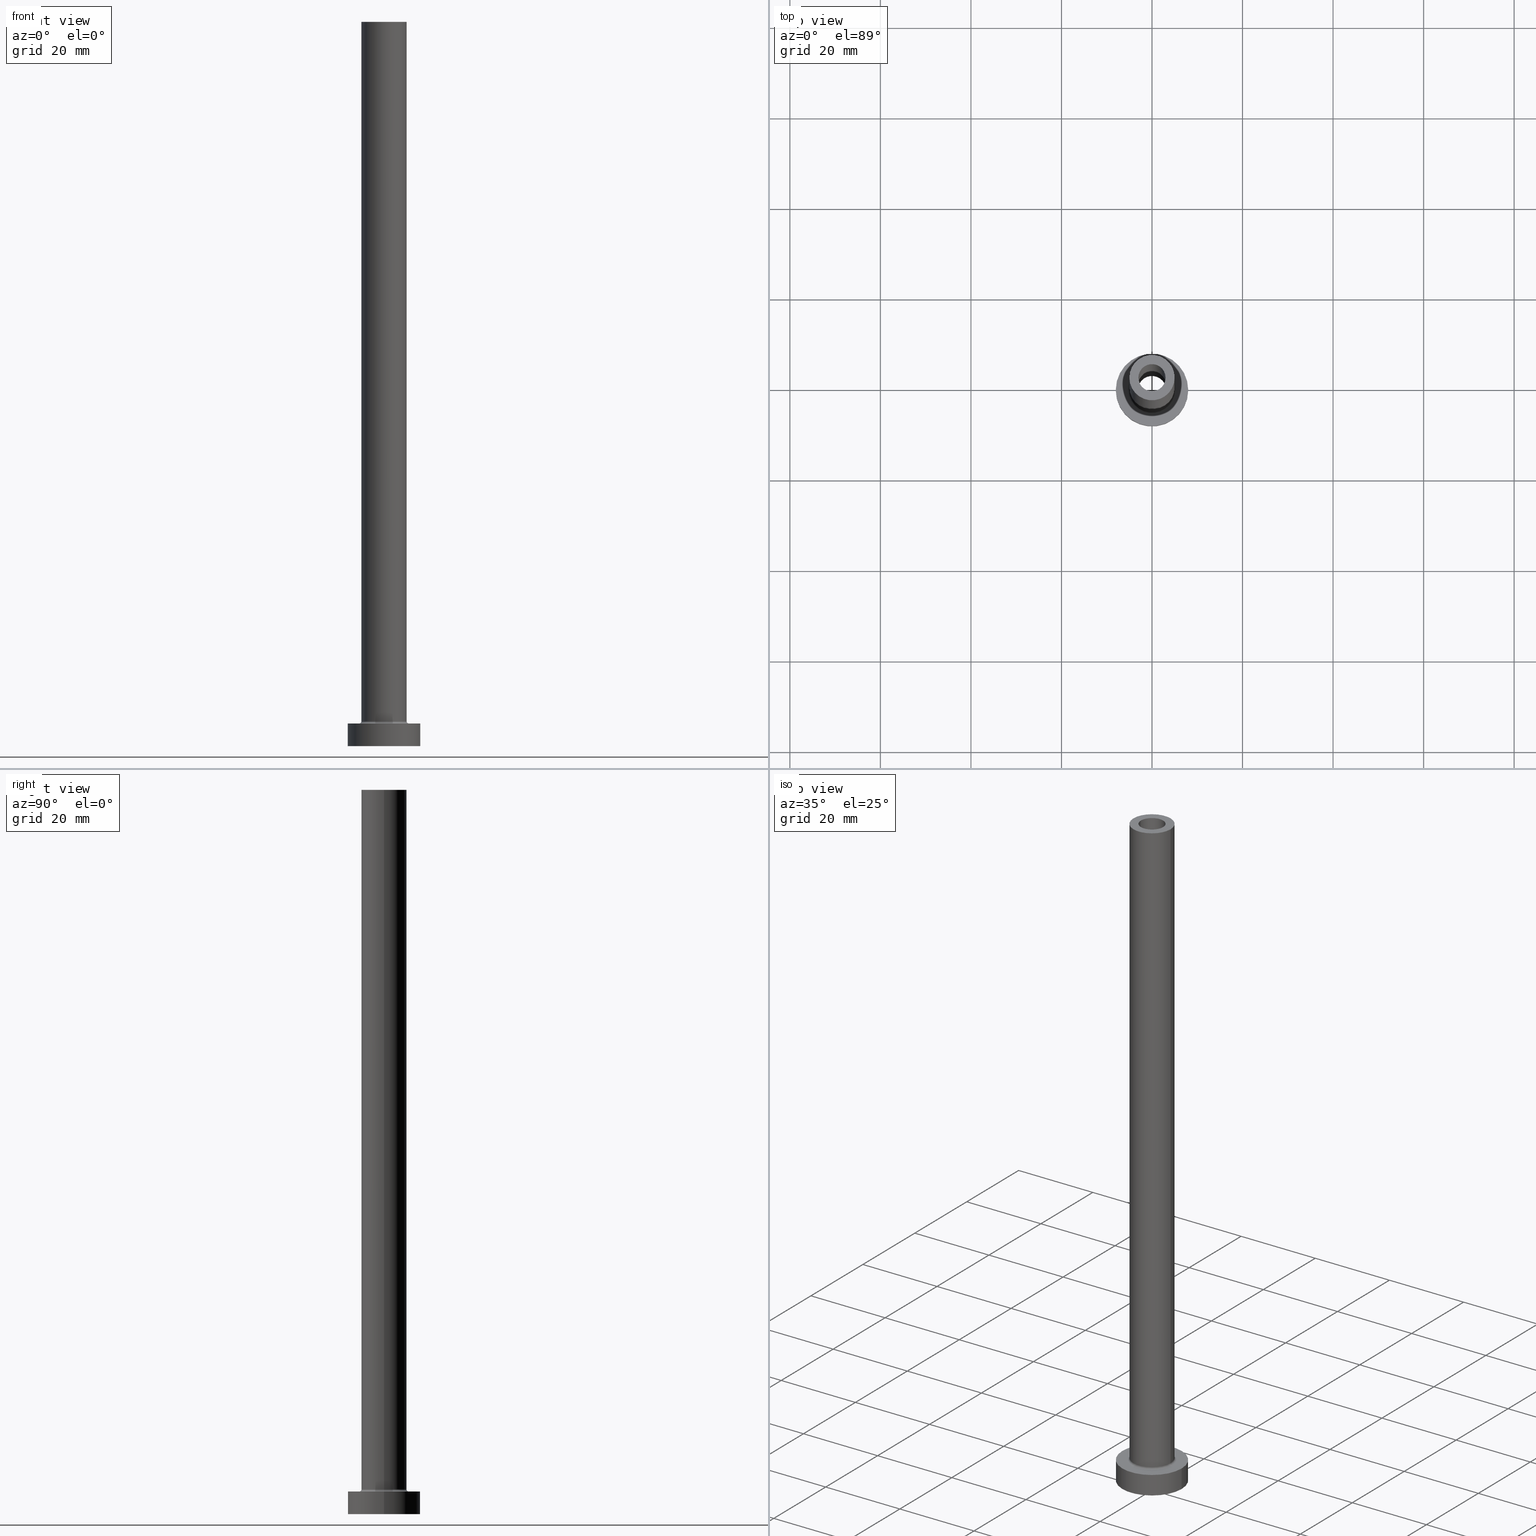
[diagram: canonical four-view strip — front | top / right | iso, engineering-drawing reading convention]
A machine part, canonical four-view strip (front | top / right | iso — engineering-drawing reading convention). The complete STEP part file that produces these views, byte-faithful:
ISO-10303-21;
HEADER;
FILE_DESCRIPTION (( 'STEP AP203' ),
    '1' );
FILE_NAME ('3b01.STEP',
    '2023-02-13T15:32:30',
    ( '' ),
    ( '' ),
    'SwSTEP 2.0',
    'SolidWorks 2019',
    '' );
FILE_SCHEMA (( 'CONFIG_CONTROL_DESIGN' ));
ENDSEC;

DATA;
#1 = PERSON_AND_ORGANIZATION ( #352, #403 ) ;
#2 = CARTESIAN_POINT ( 'NONE',  ( 0.000000000000000000, 0.000000000000000000, 0.000000000000000000 ) ) ;
#3 = ADVANCED_FACE ( 'NONE', ( #236, #304 ), #94, .F. ) ;
#4 = ORIENTED_EDGE ( 'NONE', *, *, #457, .T. ) ;
#5 = CARTESIAN_POINT ( 'NONE',  ( 3.150000000000000355, 3.857637417314162196E-16, 115.0000000000000000 ) ) ;
#6 = AXIS2_PLACEMENT_3D ( 'NONE', #54, #50, #194 ) ;
#7 = VERTEX_POINT ( 'NONE', #25 ) ;
#8 = APPLICATION_CONTEXT ( 'configuration controlled 3d designs of mechanical parts and assemblies' ) ;
#9 = CARTESIAN_POINT ( 'NONE',  ( 0.000000000000000000, 0.000000000000000000, 5.000000000000000000 ) ) ;
#10 = ORIENTED_EDGE ( 'NONE', *, *, #229, .F. ) ;
#11 = AXIS2_PLACEMENT_3D ( 'NONE', #331, #186, #149 ) ;
#12 = ADVANCED_FACE ( 'NONE', ( #311 ), #128, .F. ) ;
#13 = DIRECTION ( 'NONE',  ( 1.000000000000000000, 0.000000000000000000, 0.000000000000000000 ) ) ;
#14 = ORIENTED_EDGE ( 'NONE', *, *, #70, .F. ) ;
#15 = DIRECTION ( 'NONE',  ( 1.000000000000000000, 0.000000000000000000, 0.000000000000000000 ) ) ;
#16 = CARTESIAN_POINT ( 'NONE',  ( 8.000000000000000000, 9.797174393178825657E-16, 0.000000000000000000 ) ) ;
#17 = DIRECTION ( 'NONE',  ( -0.000000000000000000, -0.000000000000000000, -1.000000000000000000 ) ) ;
#18 = APPROVAL ( #381, 'NEUR�EN�' ) ;
#19 = VERTEX_POINT ( 'NONE', #16 ) ;
#20 = AXIS2_PLACEMENT_3D ( 'NONE', #421, #135, #390 ) ;
#21 = ORIENTED_EDGE ( 'NONE', *, *, #299, .T. ) ;
#22 = AXIS2_PLACEMENT_3D ( 'NONE', #275, #189, #374 ) ;
#23 = APPROVAL_PERSON_ORGANIZATION ( #30, #18, #169 ) ;
#24 = CARTESIAN_POINT ( 'NONE',  ( 0.000000000000000000, 0.000000000000000000, 0.000000000000000000 ) ) ;
#25 = CARTESIAN_POINT ( 'NONE',  ( -5.500000000000000000, 6.735557395310442023E-16, 5.000000000000002665 ) ) ;
#26 = DIRECTION ( 'NONE',  ( -1.000000000000000000, 0.000000000000000000, 0.000000000000000000 ) ) ;
#27 = LINE ( 'NONE', #245, #439 ) ;
#28 = ADVANCED_FACE ( 'NONE', ( #306 ), #380, .T. ) ;
#29 = FACE_BOUND ( 'NONE', #307, .T. ) ;
#30 = PERSON_AND_ORGANIZATION ( #352, #403 ) ;
#31 = DATE_AND_TIME ( #214, #202 ) ;
#32 = DIRECTION ( 'NONE',  ( -0.000000000000000000, -0.000000000000000000, -1.000000000000000000 ) ) ;
#33 = PERSON_AND_ORGANIZATION_ROLE ( 'creator' ) ;
#34 = CARTESIAN_POINT ( 'NONE',  ( 3.000000000000000444, 3.673940397442059868E-16, 115.0000000000000000 ) ) ;
#35 = SHAPE_DEFINITION_REPRESENTATION ( #293, #43 ) ;
#36 = APPROVAL_PERSON_ORGANIZATION ( #325, #441, #426 ) ;
#37 = DIRECTION ( 'NONE',  ( 1.000000000000000000, 0.000000000000000000, 0.000000000000000000 ) ) ;
#38 = ADVANCED_FACE ( 'NONE', ( #453 ), #232, .F. ) ;
#39 = MECHANICAL_CONTEXT ( 'NONE', #138, 'mechanical' ) ;
#40 = CYLINDRICAL_SURFACE ( 'NONE', #340, 5.000000000000000000 ) ;
#41 = ORIENTED_EDGE ( 'NONE', *, *, #344, .F. ) ;
#42 = ORIENTED_EDGE ( 'NONE', *, *, #312, .F. ) ;
#43 = ADVANCED_BREP_SHAPE_REPRESENTATION ( '3b01', ( #391, #75 ), #363 ) ;
#44 = AXIS2_PLACEMENT_3D ( 'NONE', #239, #208, #420 ) ;
#45 = VERTEX_POINT ( 'NONE', #34 ) ;
#46 = LOCAL_TIME ( 16, 32, 30.00000000000000000, #288 ) ;
#47 = DIRECTION ( 'NONE',  ( -0.000000000000000000, -0.000000000000000000, -1.000000000000000000 ) ) ;
#48 = EDGE_CURVE ( 'NONE', #188, #125, #289, .T. ) ;
#49 = ORIENTED_EDGE ( 'NONE', *, *, #330, .F. ) ;
#50 = DIRECTION ( 'NONE',  ( 0.000000000000000000, -1.000000000000000000, 0.000000000000000000 ) ) ;
#51 = ORIENTED_EDGE ( 'NONE', *, *, #427, .F. ) ;
#52 = CIRCLE ( 'NONE', #44, 3.150000000000000355 ) ;
#53 = APPROVAL ( #212, 'NEUR�EN�' ) ;
#54 = CARTESIAN_POINT ( 'NONE',  ( 5.500000000000000000, 0.000000000000000000, 5.500000000000005329 ) ) ;
#55 = ORIENTED_EDGE ( 'NONE', *, *, #190, .F. ) ;
#56 = ORIENTED_EDGE ( 'NONE', *, *, #279, .F. ) ;
#57 = AXIS2_PLACEMENT_3D ( 'NONE', #398, #361, #37 ) ;
#58 = PLANE ( 'NONE',  #459 ) ;
#59 = EDGE_LOOP ( 'NONE', ( #260, #268, #231, #55 ) ) ;
#60 = CC_DESIGN_SECURITY_CLASSIFICATION ( #272, ( #83 ) ) ;
#61 = FACE_OUTER_BOUND ( 'NONE', #294, .T. ) ;
#62 = ORIENTED_EDGE ( 'NONE', *, *, #318, .T. ) ;
#63 = EDGE_CURVE ( 'NONE', #415, #125, #269, .T. ) ;
#64 = DIRECTION ( 'NONE',  ( 0.000000000000000000, 0.000000000000000000, -1.000000000000000000 ) ) ;
#65 = DATE_AND_TIME ( #385, #308 ) ;
#66 = CARTESIAN_POINT ( 'NONE',  ( 0.000000000000000000, 0.000000000000000000, 5.000000000000000000 ) ) ;
#67 = CIRCLE ( 'NONE', #106, 0.5000000000000004441 ) ;
#68 = CIRCLE ( 'NONE', #356, 3.150000000000000355 ) ;
#69 = DIRECTION ( 'NONE',  ( 0.000000000000000000, 0.000000000000000000, 1.000000000000000000 ) ) ;
#70 = EDGE_CURVE ( 'NONE', #438, #7, #198, .T. ) ;
#71 = APPROVAL_DATE_TIME ( #65, #18 ) ;
#72 = DIRECTION ( 'NONE',  ( -0.000000000000000000, -0.000000000000000000, -1.000000000000000000 ) ) ;
#73 = AXIS2_PLACEMENT_3D ( 'NONE', #266, #378, #337 ) ;
#74 = VECTOR ( 'NONE', #354, 1000.000000000000000 ) ;
#75 = AXIS2_PLACEMENT_3D ( 'NONE', #358, #108, #178 ) ;
#76 = ORIENTED_EDGE ( 'NONE', *, *, #190, .T. ) ;
#77 = EDGE_LOOP ( 'NONE', ( #369, #123 ) ) ;
#78 = DIRECTION ( 'NONE',  ( -0.000000000000000000, -0.000000000000000000, -1.000000000000000000 ) ) ;
#79 = VERTEX_POINT ( 'NONE', #451 ) ;
#80 = VECTOR ( 'NONE', #458, 1000.000000000000000 ) ;
#81 = FACE_OUTER_BOUND ( 'NONE', #114, .T. ) ;
#82 = EDGE_CURVE ( 'NONE', #122, #79, #27, .T. ) ;
#83 = PRODUCT_DEFINITION_FORMATION_WITH_SPECIFIED_SOURCE ( 'LIBOVOLN�', '', #282, .NOT_KNOWN. ) ;
#84 = ORIENTED_EDGE ( 'NONE', *, *, #48, .T. ) ;
#85 = ORIENTED_EDGE ( 'NONE', *, *, #312, .T. ) ;
#86 = FACE_OUTER_BOUND ( 'NONE', #405, .T. ) ;
#87 = ORIENTED_EDGE ( 'NONE', *, *, #48, .F. ) ;
#88 = ADVANCED_FACE ( 'NONE', ( #297, #290 ), #153, .F. ) ;
#89 = CYLINDRICAL_SURFACE ( 'NONE', #210, 3.000000000000000444 ) ;
#90 = ORIENTED_EDGE ( 'NONE', *, *, #344, .T. ) ;
#91 = AXIS2_PLACEMENT_3D ( 'NONE', #401, #255, #221 ) ;
#92 = EDGE_LOOP ( 'NONE', ( #163, #292 ) ) ;
#93 = DIRECTION ( 'NONE',  ( 0.000000000000000000, 0.000000000000000000, -1.000000000000000000 ) ) ;
#94 = PLANE ( 'NONE',  #183 ) ;
#95 = CARTESIAN_POINT ( 'NONE',  ( 0.000000000000000000, 0.000000000000000000, 0.000000000000000000 ) ) ;
#96 = EDGE_CURVE ( 'NONE', #187, #45, #247, .T. ) ;
#97 = ORIENTED_EDGE ( 'NONE', *, *, #82, .F. ) ;
#98 = CC_DESIGN_APPROVAL ( #441, ( #435 ) ) ;
#99 = DIRECTION ( 'NONE',  ( 0.000000000000000000, 0.000000000000000000, 1.000000000000000000 ) ) ;
#100 = CARTESIAN_POINT ( 'NONE',  ( 0.000000000000000000, 0.000000000000000000, 5.500000000000005329 ) ) ;
#101 = PERSON_AND_ORGANIZATION ( #352, #403 ) ;
#102 = EDGE_CURVE ( 'NONE', #79, #193, #333, .T. ) ;
#103 = CYLINDRICAL_SURFACE ( 'NONE', #315, 8.000000000000000000 ) ;
#104 = CARTESIAN_POINT ( 'NONE',  ( -5.000000000000000000, 0.000000000000000000, 160.0000000000000000 ) ) ;
#105 = PERSON_AND_ORGANIZATION ( #352, #403 ) ;
#106 = AXIS2_PLACEMENT_3D ( 'NONE', #305, #368, #192 ) ;
#107 = CARTESIAN_POINT ( 'NONE',  ( 5.000000000000000000, 6.123233995736766282E-16, 5.500000000000005329 ) ) ;
#108 = DIRECTION ( 'NONE',  ( 0.000000000000000000, 0.000000000000000000, 1.000000000000000000 ) ) ;
#109 = DIRECTION ( 'NONE',  ( 0.000000000000000000, 0.000000000000000000, 1.000000000000000000 ) ) ;
#110 = APPLICATION_PROTOCOL_DEFINITION ( 'international standard', 'config_control_design', 1994, #138 ) ;
#111 = DIRECTION ( 'NONE',  ( 0.000000000000000000, 0.000000000000000000, 1.000000000000000000 ) ) ;
#112 = TOROIDAL_SURFACE ( 'NONE', #370, 5.500000000000000000, 0.5000000000000000000 ) ;
#113 = DIRECTION ( 'NONE',  ( -1.000000000000000000, 0.000000000000000000, 0.000000000000000000 ) ) ;
#114 = EDGE_LOOP ( 'NONE', ( #119, #219, #440, #87 ) ) ;
#115 = ADVANCED_FACE ( 'NONE', ( #81 ), #151, .T. ) ;
#116 = CARTESIAN_POINT ( 'NONE',  ( -5.000000000000000000, 0.000000000000000000, 5.500000000000005329 ) ) ;
#117 = ORIENTED_EDGE ( 'NONE', *, *, #393, .T. ) ;
#118 = AXIS2_PLACEMENT_3D ( 'NONE', #95, #99, #348 ) ;
#119 = ORIENTED_EDGE ( 'NONE', *, *, #393, .F. ) ;
#120 = EDGE_LOOP ( 'NONE', ( #301, #21, #14, #238 ) ) ;
#121 = DIRECTION ( 'NONE',  ( -1.000000000000000000, 0.000000000000000000, 0.000000000000000000 ) ) ;
#122 = VERTEX_POINT ( 'NONE', #5 ) ;
#123 = ORIENTED_EDGE ( 'NONE', *, *, #362, .T. ) ;
#124 = DIRECTION ( 'NONE',  ( 0.000000000000000000, 0.000000000000000000, -1.000000000000000000 ) ) ;
#125 = VERTEX_POINT ( 'NONE', #116 ) ;
#126 = EDGE_CURVE ( 'NONE', #309, #195, #387, .T. ) ;
#127 = CARTESIAN_POINT ( 'NONE',  ( 0.000000000000000000, 0.000000000000000000, 160.0000000000000000 ) ) ;
#128 = CYLINDRICAL_SURFACE ( 'NONE', #73, 3.150000000000000355 ) ;
#129 = AXIS2_PLACEMENT_3D ( 'NONE', #2, #78, #216 ) ;
#130 = LINE ( 'NONE', #277, #80 ) ;
#131 = CARTESIAN_POINT ( 'NONE',  ( 0.000000000000000000, 0.000000000000000000, 5.000000000000000000 ) ) ;
#132 = CIRCLE ( 'NONE', #91, 3.000000000000000444 ) ;
#133 = APPROVAL_DATE_TIME ( #205, #441 ) ;
#134 = CARTESIAN_POINT ( 'NONE',  ( 5.000000000000000000, 6.123233995736766282E-16, 160.0000000000000000 ) ) ;
#135 = DIRECTION ( 'NONE',  ( 0.000000000000000000, 0.000000000000000000, 1.000000000000000000 ) ) ;
#136 = COORDINATED_UNIVERSAL_TIME_OFFSET ( 1, 0, .AHEAD. ) ;
#137 = CARTESIAN_POINT ( 'NONE',  ( 0.000000000000000000, 0.000000000000000000, 5.000000000000000000 ) ) ;
#138 = APPLICATION_CONTEXT ( 'configuration controlled 3d designs of mechanical parts and assemblies' ) ;
#139 = COORDINATED_UNIVERSAL_TIME_OFFSET ( 1, 0, .AHEAD. ) ;
#140 = CYLINDRICAL_SURFACE ( 'NONE', #302, 3.150000000000000355 ) ;
#141 = AXIS2_PLACEMENT_3D ( 'NONE', #131, #392, #346 ) ;
#142 = AXIS2_PLACEMENT_3D ( 'NONE', #137, #69, #211 ) ;
#143 = CC_DESIGN_PERSON_AND_ORGANIZATION_ASSIGNMENT ( #1, #180, ( #282 ) ) ;
#144 = CARTESIAN_POINT ( 'NONE',  ( 0.000000000000000000, 0.000000000000000000, 160.0000000000000000 ) ) ;
#145 = ORIENTED_EDGE ( 'NONE', *, *, #206, .T. ) ;
#146 = DIRECTION ( 'NONE',  ( -0.000000000000000000, -0.000000000000000000, -1.000000000000000000 ) ) ;
#147 = VECTOR ( 'NONE', #460, 1000.000000000000000 ) ;
#148 = ORIENTED_EDGE ( 'NONE', *, *, #96, .F. ) ;
#149 = DIRECTION ( 'NONE',  ( 1.000000000000000000, 0.000000000000000000, -0.000000000000000000 ) ) ;
#150 = EDGE_CURVE ( 'NONE', #122, #359, #172, .T. ) ;
#151 = CYLINDRICAL_SURFACE ( 'NONE', #355, 5.000000000000000000 ) ;
#152 = ORIENTED_EDGE ( 'NONE', *, *, #229, .T. ) ;
#153 = PLANE ( 'NONE',  #11 ) ;
#154 = ORIENTED_EDGE ( 'NONE', *, *, #177, .F. ) ;
#155 = CIRCLE ( 'NONE', #118, 8.000000000000000000 ) ;
#156 = CARTESIAN_POINT ( 'NONE',  ( 0.000000000000000000, 0.000000000000000000, 160.0000000000000000 ) ) ;
#157 = EDGE_LOOP ( 'NONE', ( #154, #56, #84, #145 ) ) ;
#158 = DIRECTION ( 'NONE',  ( 0.000000000000000000, 0.000000000000000000, 1.000000000000000000 ) ) ;
#159 = ORIENTED_EDGE ( 'NONE', *, *, #171, .T. ) ;
#160 = FACE_OUTER_BOUND ( 'NONE', #444, .T. ) ;
#161 = VERTEX_POINT ( 'NONE', #300 ) ;
#162 = CARTESIAN_POINT ( 'NONE',  ( 0.000000000000000000, 0.000000000000000000, 5.500000000000005329 ) ) ;
#163 = ORIENTED_EDGE ( 'NONE', *, *, #457, .F. ) ;
#164 = CIRCLE ( 'NONE', #271, 8.000000000000000000 ) ;
#165 = DIRECTION ( 'NONE',  ( 0.000000000000000000, 0.000000000000000000, 1.000000000000000000 ) ) ;
#166 = EDGE_LOOP ( 'NONE', ( #49, #376, #85, #343 ) ) ;
#167 = CARTESIAN_POINT ( 'NONE',  ( 0.000000000000000000, 0.000000000000000000, 160.0000000000000000 ) ) ;
#168 = DIRECTION ( 'NONE',  ( 0.000000000000000000, 0.000000000000000000, -1.000000000000000000 ) ) ;
#169 = APPROVAL_ROLE ( '' ) ;
#170 = FACE_OUTER_BOUND ( 'NONE', #59, .T. ) ;
#171 = EDGE_CURVE ( 'NONE', #240, #327, #132, .T. ) ;
#172 = CIRCLE ( 'NONE', #409, 3.150000000000000355 ) ;
#173 = CARTESIAN_POINT ( 'NONE',  ( 0.000000000000000000, 0.000000000000000000, 5.500000000000005329 ) ) ;
#174 = APPROVAL_DATE_TIME ( #31, #53 ) ;
#175 =( LENGTH_UNIT ( ) NAMED_UNIT ( * ) SI_UNIT ( .MILLI., .METRE. ) );
#176 = PERSON_AND_ORGANIZATION_ROLE ( 'classification_officer' ) ;
#177 = EDGE_CURVE ( 'NONE', #407, #415, #179, .T. ) ;
#178 = DIRECTION ( 'NONE',  ( 1.000000000000000000, 0.000000000000000000, 0.000000000000000000 ) ) ;
#179 = LINE ( 'NONE', #364, #74 ) ;
#180 = PERSON_AND_ORGANIZATION_ROLE ( 'design_owner' ) ;
#181 = CARTESIAN_POINT ( 'NONE',  ( -3.000000000000000444, 0.000000000000000000, 115.0000000000000000 ) ) ;
#182 = CC_DESIGN_DATE_AND_TIME_ASSIGNMENT ( #316, #456, ( #272 ) ) ;
#183 = AXIS2_PLACEMENT_3D ( 'NONE', #197, #436, #339 ) ;
#184 = ORIENTED_EDGE ( 'NONE', *, *, #82, .T. ) ;
#185 = CIRCLE ( 'NONE', #396, 5.500000000000000000 ) ;
#186 = DIRECTION ( 'NONE',  ( 0.000000000000000000, 0.000000000000000000, 1.000000000000000000 ) ) ;
#187 = VERTEX_POINT ( 'NONE', #181 ) ;
#188 = VERTEX_POINT ( 'NONE', #395 ) ;
#189 = DIRECTION ( 'NONE',  ( 0.000000000000000000, 0.000000000000000000, 1.000000000000000000 ) ) ;
#190 = EDGE_CURVE ( 'NONE', #7, #438, #185, .T. ) ;
#191 = VECTOR ( 'NONE', #93, 1000.000000000000000 ) ;
#192 = DIRECTION ( 'NONE',  ( -1.000000000000000000, 1.224646799147351482E-16, 0.000000000000000000 ) ) ;
#193 = VERTEX_POINT ( 'NONE', #324 ) ;
#194 = DIRECTION ( 'NONE',  ( 0.000000000000000000, 0.000000000000000000, -1.000000000000000000 ) ) ;
#195 = VERTEX_POINT ( 'NONE', #461 ) ;
#196 = ADVANCED_FACE ( 'NONE', ( #218 ), #40, .T. ) ;
#197 = CARTESIAN_POINT ( 'NONE',  ( 0.000000000000000000, 0.000000000000000000, 115.0000000000000000 ) ) ;
#198 = CIRCLE ( 'NONE', #141, 5.500000000000000000 ) ;
#199 = CARTESIAN_POINT ( 'NONE',  ( 0.000000000000000000, 0.000000000000000000, 160.0000000000000000 ) ) ;
#200 = CIRCLE ( 'NONE', #22, 3.000000000000000444 ) ;
#201 = ORIENTED_EDGE ( 'NONE', *, *, #220, .F. ) ;
#202 = LOCAL_TIME ( 16, 32, 30.00000000000000000, #241 ) ;
#203 = DESIGN_CONTEXT ( 'detailed design', #8, 'design' ) ;
#204 = FACE_OUTER_BOUND ( 'NONE', #166, .T. ) ;
#205 = DATE_AND_TIME ( #419, #46 ) ;
#206 = EDGE_CURVE ( 'NONE', #125, #415, #233, .T. ) ;
#207 = CARTESIAN_POINT ( 'NONE',  ( 0.000000000000000000, 0.000000000000000000, 5.000000000000000000 ) ) ;
#208 = DIRECTION ( 'NONE',  ( 0.000000000000000000, 0.000000000000000000, 1.000000000000000000 ) ) ;
#209 = DIRECTION ( 'NONE',  ( -0.000000000000000000, -0.000000000000000000, -1.000000000000000000 ) ) ;
#210 = AXIS2_PLACEMENT_3D ( 'NONE', #127, #406, #227 ) ;
#211 = DIRECTION ( 'NONE',  ( 1.000000000000000000, 0.000000000000000000, -0.000000000000000000 ) ) ;
#212 = APPROVAL_STATUS ( 'not_yet_approved' ) ;
#213 = ADVANCED_FACE ( 'NONE', ( #160 ), #230, .F. ) ;
#214 = CALENDAR_DATE ( 2023, 13, 2 ) ;
#215 =( NAMED_UNIT ( * ) PLANE_ANGLE_UNIT ( ) SI_UNIT ( $, .RADIAN. ) );
#216 = DIRECTION ( 'NONE',  ( 1.000000000000000000, 0.000000000000000000, 0.000000000000000000 ) ) ;
#217 = VECTOR ( 'NONE', #416, 1000.000000000000000 ) ;
#218 = FACE_OUTER_BOUND ( 'NONE', #157, .T. ) ;
#219 = ORIENTED_EDGE ( 'NONE', *, *, #177, .T. ) ;
#220 = EDGE_CURVE ( 'NONE', #327, #240, #200, .T. ) ;
#221 = DIRECTION ( 'NONE',  ( 1.000000000000000000, 0.000000000000000000, 0.000000000000000000 ) ) ;
#222 = EDGE_LOOP ( 'NONE', ( #256, #62 ) ) ;
#223 = CIRCLE ( 'NONE', #287, 5.000000000000000000 ) ;
#224 = CIRCLE ( 'NONE', #433, 3.000000000000000444 ) ;
#225 = DIRECTION ( 'NONE',  ( 1.000000000000000000, 0.000000000000000000, 0.000000000000000000 ) ) ;
#226 = EDGE_LOOP ( 'NONE', ( #372, #262 ) ) ;
#227 = DIRECTION ( 'NONE',  ( -1.000000000000000000, 0.000000000000000000, 0.000000000000000000 ) ) ;
#228 = ORIENTED_EDGE ( 'NONE', *, *, #417, .T. ) ;
#229 = EDGE_CURVE ( 'NONE', #359, #193, #412, .T. ) ;
#230 = CYLINDRICAL_SURFACE ( 'NONE', #429, 3.000000000000000444 ) ;
#231 = ORIENTED_EDGE ( 'NONE', *, *, #270, .T. ) ;
#232 = TOROIDAL_SURFACE ( 'NONE', #20, 5.500000000000000000, 0.5000000000000000000 ) ;
#233 = CIRCLE ( 'NONE', #350, 5.000000000000000000 ) ;
#234 = CC_DESIGN_APPROVAL ( #53, ( #83 ) ) ;
#235 = ORIENTED_EDGE ( 'NONE', *, *, #150, .T. ) ;
#236 = FACE_BOUND ( 'NONE', #77, .T. ) ;
#237 = FACE_BOUND ( 'NONE', #360, .T. ) ;
#238 = ORIENTED_EDGE ( 'NONE', *, *, #270, .F. ) ;
#239 = CARTESIAN_POINT ( 'NONE',  ( 0.000000000000000000, 0.000000000000000000, 115.0000000000000000 ) ) ;
#240 = VERTEX_POINT ( 'NONE', #303 ) ;
#241 = COORDINATED_UNIVERSAL_TIME_OFFSET ( 1, 0, .AHEAD. ) ;
#242 = ADVANCED_FACE ( 'NONE', ( #237, #434 ), #58, .T. ) ;
#243 = DATE_AND_TIME ( #319, #341 ) ;
#244 = FACE_OUTER_BOUND ( 'NONE', #222, .T. ) ;
#245 = CARTESIAN_POINT ( 'NONE',  ( 3.150000000000000355, 3.857637417314162196E-16, 123.9095454429505025 ) ) ;
#246 = PERSON_AND_ORGANIZATION ( #352, #403 ) ;
#247 = CIRCLE ( 'NONE', #57, 3.000000000000000444 ) ;
#248 = CARTESIAN_POINT ( 'NONE',  ( 0.000000000000000000, 0.000000000000000000, 115.0000000000000000 ) ) ;
#249 = AXIS2_PLACEMENT_3D ( 'NONE', #207, #283, #414 ) ;
#250 = LOCAL_TIME ( 16, 32, 30.00000000000000000, #388 ) ;
#251 = APPROVAL_ROLE ( '' ) ;
#252 = CARTESIAN_POINT ( 'NONE',  ( 0.000000000000000000, 0.000000000000000000, 0.000000000000000000 ) ) ;
#253 =( NAMED_UNIT ( * ) SI_UNIT ( $, .STERADIAN. ) SOLID_ANGLE_UNIT ( ) );
#254 = DIRECTION ( 'NONE',  ( 1.000000000000000000, 0.000000000000000000, 0.000000000000000000 ) ) ;
#255 = DIRECTION ( 'NONE',  ( 0.000000000000000000, 0.000000000000000000, 1.000000000000000000 ) ) ;
#256 = ORIENTED_EDGE ( 'NONE', *, *, #126, .T. ) ;
#257 = EDGE_CURVE ( 'NONE', #161, #19, #164, .T. ) ;
#258 = VECTOR ( 'NONE', #17, 1000.000000000000000 ) ;
#259 = CARTESIAN_POINT ( 'NONE',  ( 0.000000000000000000, 0.000000000000000000, 5.000000000000000000 ) ) ;
#260 = ORIENTED_EDGE ( 'NONE', *, *, #299, .F. ) ;
#261 = AXIS2_PLACEMENT_3D ( 'NONE', #66, #209, #322 ) ;
#262 = ORIENTED_EDGE ( 'NONE', *, *, #335, .F. ) ;
#263 = ADVANCED_FACE ( 'NONE', ( #86 ), #89, .F. ) ;
#264 = EDGE_LOOP ( 'NONE', ( #41, #365 ) ) ;
#265 = DIRECTION ( 'NONE',  ( 0.000000000000000000, 0.000000000000000000, 1.000000000000000000 ) ) ;
#266 = CARTESIAN_POINT ( 'NONE',  ( 0.000000000000000000, 0.000000000000000000, 123.9095454429505025 ) ) ;
#267 = LINE ( 'NONE', #338, #258 ) ;
#268 = ORIENTED_EDGE ( 'NONE', *, *, #63, .F. ) ;
#269 = CIRCLE ( 'NONE', #384, 5.000000000000000000 ) ;
#270 = EDGE_CURVE ( 'NONE', #415, #438, #424, .T. ) ;
#271 = AXIS2_PLACEMENT_3D ( 'NONE', #24, #165, #336 ) ;
#272 = SECURITY_CLASSIFICATION ( '', '', #452 ) ;
#273 = ORIENTED_EDGE ( 'NONE', *, *, #70, .T. ) ;
#274 = ORIENTED_EDGE ( 'NONE', *, *, #171, .F. ) ;
#275 = CARTESIAN_POINT ( 'NONE',  ( 0.000000000000000000, 0.000000000000000000, 160.0000000000000000 ) ) ;
#276 = ORIENTED_EDGE ( 'NONE', *, *, #427, .T. ) ;
#277 = CARTESIAN_POINT ( 'NONE',  ( 3.000000000000000444, 3.673940397442059868E-16, 160.0000000000000000 ) ) ;
#278 = AXIS2_PLACEMENT_3D ( 'NONE', #9, #111, #296 ) ;
#279 = EDGE_CURVE ( 'NONE', #188, #407, #323, .T. ) ;
#280 = LINE ( 'NONE', #313, #328 ) ;
#281 = CALENDAR_DATE ( 2023, 13, 2 ) ;
#282 = PRODUCT ( '3b01', '3b01', '', ( #39 ) ) ;
#283 = DIRECTION ( 'NONE',  ( 0.000000000000000000, 0.000000000000000000, 1.000000000000000000 ) ) ;
#284 = PERSON_AND_ORGANIZATION ( #352, #403 ) ;
#285 = CC_DESIGN_PERSON_AND_ORGANIZATION_ASSIGNMENT ( #284, #176, ( #272 ) ) ;
#286 = DIRECTION ( 'NONE',  ( 1.000000000000000000, 0.000000000000000000, 0.000000000000000000 ) ) ;
#287 = AXIS2_PLACEMENT_3D ( 'NONE', #167, #455, #286 ) ;
#288 = COORDINATED_UNIVERSAL_TIME_OFFSET ( 1, 0, .AHEAD. ) ;
#289 = LINE ( 'NONE', #104, #147 ) ;
#290 = FACE_OUTER_BOUND ( 'NONE', #226, .T. ) ;
#291 = CC_DESIGN_PERSON_AND_ORGANIZATION_ASSIGNMENT ( #246, #33, ( #83 ) ) ;
#292 = ORIENTED_EDGE ( 'NONE', *, *, #102, .F. ) ;
#293 = PRODUCT_DEFINITION_SHAPE ( 'NONE', 'NONE',  #435 ) ;
#294 = EDGE_LOOP ( 'NONE', ( #97, #235, #152, #4 ) ) ;
#295 = CC_DESIGN_APPROVAL ( #18, ( #272 ) ) ;
#296 = DIRECTION ( 'NONE',  ( 1.000000000000000000, 0.000000000000000000, 0.000000000000000000 ) ) ;
#297 = FACE_BOUND ( 'NONE', #92, .T. ) ;
#298 = UNCERTAINTY_MEASURE_WITH_UNIT (LENGTH_MEASURE( 1.000000000000000082E-05 ), #175, 'distance_accuracy_value', 'NONE');
#299 = EDGE_CURVE ( 'NONE', #125, #7, #67, .T. ) ;
#300 = CARTESIAN_POINT ( 'NONE',  ( -8.000000000000000000, 0.000000000000000000, 0.000000000000000000 ) ) ;
#301 = ORIENTED_EDGE ( 'NONE', *, *, #206, .F. ) ;
#302 = AXIS2_PLACEMENT_3D ( 'NONE', #450, #64, #26 ) ;
#303 = CARTESIAN_POINT ( 'NONE',  ( 3.000000000000000444, 3.673940397442059868E-16, 160.0000000000000000 ) ) ;
#304 = FACE_OUTER_BOUND ( 'NONE', #264, .T. ) ;
#305 = CARTESIAN_POINT ( 'NONE',  ( -5.500000000000000000, 6.735557395310442023E-16, 5.500000000000005329 ) ) ;
#306 = FACE_OUTER_BOUND ( 'NONE', #399, .T. ) ;
#307 = EDGE_LOOP ( 'NONE', ( #273, #76 ) ) ;
#308 = LOCAL_TIME ( 16, 32, 30.00000000000000000, #139 ) ;
#309 = VERTEX_POINT ( 'NONE', #437 ) ;
#310 = CARTESIAN_POINT ( 'NONE',  ( -3.150000000000000355, 0.000000000000000000, 123.9095454429505025 ) ) ;
#311 = FACE_OUTER_BOUND ( 'NONE', #408, .T. ) ;
#312 = EDGE_CURVE ( 'NONE', #309, #161, #267, .T. ) ;
#313 = CARTESIAN_POINT ( 'NONE',  ( 8.000000000000000000, 9.797174393178825657E-16, 5.000000000000000000 ) ) ;
#314 = CARTESIAN_POINT ( 'NONE',  ( -3.000000000000000444, 0.000000000000000000, 160.0000000000000000 ) ) ;
#315 = AXIS2_PLACEMENT_3D ( 'NONE', #320, #418, #379 ) ;
#316 = DATE_AND_TIME ( #281, #250 ) ;
#317 = DIRECTION ( 'NONE',  ( 1.000000000000000000, 0.000000000000000000, 0.000000000000000000 ) ) ;
#318 = EDGE_CURVE ( 'NONE', #195, #309, #442, .T. ) ;
#319 = CALENDAR_DATE ( 2023, 13, 2 ) ;
#320 = CARTESIAN_POINT ( 'NONE',  ( 0.000000000000000000, 0.000000000000000000, 5.000000000000000000 ) ) ;
#321 = DATE_TIME_ROLE ( 'creation_date' ) ;
#322 = DIRECTION ( 'NONE',  ( -1.000000000000000000, 0.000000000000000000, 0.000000000000000000 ) ) ;
#323 = CIRCLE ( 'NONE', #448, 5.000000000000000000 ) ;
#324 = CARTESIAN_POINT ( 'NONE',  ( -3.150000000000000355, 0.000000000000000000, 0.000000000000000000 ) ) ;
#325 = PERSON_AND_ORGANIZATION ( #352, #403 ) ;
#326 = CARTESIAN_POINT ( 'NONE',  ( 0.000000000000000000, 0.000000000000000000, 160.0000000000000000 ) ) ;
#327 = VERTEX_POINT ( 'NONE', #347 ) ;
#328 = VECTOR ( 'NONE', #32, 1000.000000000000000 ) ;
#329 = ORIENTED_EDGE ( 'NONE', *, *, #330, .T. ) ;
#330 = EDGE_CURVE ( 'NONE', #195, #19, #280, .T. ) ;
#331 = CARTESIAN_POINT ( 'NONE',  ( 0.000000000000000000, 0.000000000000000000, 0.000000000000000000 ) ) ;
#332 = ORIENTED_EDGE ( 'NONE', *, *, #220, .T. ) ;
#333 = CIRCLE ( 'NONE', #129, 3.150000000000000355 ) ;
#334 = EDGE_LOOP ( 'NONE', ( #445, #117 ) ) ;
#335 = EDGE_CURVE ( 'NONE', #19, #161, #155, .T. ) ;
#336 = DIRECTION ( 'NONE',  ( 1.000000000000000000, 0.000000000000000000, 0.000000000000000000 ) ) ;
#337 = DIRECTION ( 'NONE',  ( -1.000000000000000000, 0.000000000000000000, 0.000000000000000000 ) ) ;
#338 = CARTESIAN_POINT ( 'NONE',  ( -8.000000000000000000, 0.000000000000000000, 5.000000000000000000 ) ) ;
#339 = DIRECTION ( 'NONE',  ( 1.000000000000000000, 0.000000000000000000, -0.000000000000000000 ) ) ;
#340 = AXIS2_PLACEMENT_3D ( 'NONE', #326, #146, #371 ) ;
#341 = LOCAL_TIME ( 16, 32, 30.00000000000000000, #136 ) ;
#342 = DIRECTION ( 'NONE',  ( 1.000000000000000000, 0.000000000000000000, -0.000000000000000000 ) ) ;
#343 = ORIENTED_EDGE ( 'NONE', *, *, #257, .T. ) ;
#344 = EDGE_CURVE ( 'NONE', #359, #122, #52, .T. ) ;
#345 = CARTESIAN_POINT ( 'NONE',  ( -3.150000000000000355, 0.000000000000000000, 115.0000000000000000 ) ) ;
#346 = DIRECTION ( 'NONE',  ( 1.000000000000000000, 0.000000000000000000, 0.000000000000000000 ) ) ;
#347 = CARTESIAN_POINT ( 'NONE',  ( -3.000000000000000444, 0.000000000000000000, 160.0000000000000000 ) ) ;
#348 = DIRECTION ( 'NONE',  ( 1.000000000000000000, 0.000000000000000000, 0.000000000000000000 ) ) ;
#349 = CC_DESIGN_DATE_AND_TIME_ASSIGNMENT ( #243, #321, ( #435 ) ) ;
#350 = AXIS2_PLACEMENT_3D ( 'NONE', #162, #443, #13 ) ;
#351 = LINE ( 'NONE', #314, #217 ) ;
#352 = PERSON ( 'NEUR�EN�', 'NEUR�EN�', 'NEUR�EN�', ('NEUR�EN�'), ('NEUR�EN�'), ('NEUR�EN�') ) ;
#353 = APPROVAL_STATUS ( 'not_yet_approved' ) ;
#354 = DIRECTION ( 'NONE',  ( -0.000000000000000000, -0.000000000000000000, -1.000000000000000000 ) ) ;
#355 = AXIS2_PLACEMENT_3D ( 'NONE', #144, #432, #113 ) ;
#356 = AXIS2_PLACEMENT_3D ( 'NONE', #252, #72, #383 ) ;
#357 = ADVANCED_FACE ( 'NONE', ( #204 ), #103, .T. ) ;
#358 = CARTESIAN_POINT ( 'NONE',  ( 0.000000000000000000, 0.000000000000000000, 0.000000000000000000 ) ) ;
#359 = VERTEX_POINT ( 'NONE', #345 ) ;
#360 = EDGE_LOOP ( 'NONE', ( #201, #274 ) ) ;
#361 = DIRECTION ( 'NONE',  ( 0.000000000000000000, 0.000000000000000000, 1.000000000000000000 ) ) ;
#362 = EDGE_CURVE ( 'NONE', #45, #187, #224, .T. ) ;
#363 =( GEOMETRIC_REPRESENTATION_CONTEXT ( 3 ) GLOBAL_UNCERTAINTY_ASSIGNED_CONTEXT ( ( #298 ) ) GLOBAL_UNIT_ASSIGNED_CONTEXT ( ( #175, #215, #253 ) ) REPRESENTATION_CONTEXT ( 'NONE', 'WORKASPACE' ) );
#364 = CARTESIAN_POINT ( 'NONE',  ( 5.000000000000000000, 6.123233995736766282E-16, 160.0000000000000000 ) ) ;
#365 = ORIENTED_EDGE ( 'NONE', *, *, #150, .F. ) ;
#366 = CARTESIAN_POINT ( 'NONE',  ( 0.000000000000000000, 0.000000000000000000, 160.0000000000000000 ) ) ;
#367 = CC_DESIGN_PERSON_AND_ORGANIZATION_ASSIGNMENT ( #101, #425, ( #435 ) ) ;
#368 = DIRECTION ( 'NONE',  ( 1.224646799147353207E-16, 1.000000000000000000, -0.000000000000000000 ) ) ;
#369 = ORIENTED_EDGE ( 'NONE', *, *, #96, .T. ) ;
#370 = AXIS2_PLACEMENT_3D ( 'NONE', #173, #386, #317 ) ;
#371 = DIRECTION ( 'NONE',  ( -1.000000000000000000, 0.000000000000000000, 0.000000000000000000 ) ) ;
#372 = ORIENTED_EDGE ( 'NONE', *, *, #257, .F. ) ;
#373 = ORIENTED_EDGE ( 'NONE', *, *, #417, .F. ) ;
#374 = DIRECTION ( 'NONE',  ( 1.000000000000000000, 0.000000000000000000, 0.000000000000000000 ) ) ;
#375 = ADVANCED_FACE ( 'NONE', ( #170 ), #112, .F. ) ;
#376 = ORIENTED_EDGE ( 'NONE', *, *, #126, .F. ) ;
#377 = DIRECTION ( 'NONE',  ( 0.000000000000000000, 0.000000000000000000, 1.000000000000000000 ) ) ;
#378 = DIRECTION ( 'NONE',  ( 0.000000000000000000, 0.000000000000000000, -1.000000000000000000 ) ) ;
#379 = DIRECTION ( 'NONE',  ( -1.000000000000000000, 0.000000000000000000, 0.000000000000000000 ) ) ;
#380 = CYLINDRICAL_SURFACE ( 'NONE', #261, 8.000000000000000000 ) ;
#381 = APPROVAL_STATUS ( 'not_yet_approved' ) ;
#382 = ADVANCED_FACE ( 'NONE', ( #61 ), #140, .F. ) ;
#383 = DIRECTION ( 'NONE',  ( 1.000000000000000000, 0.000000000000000000, 0.000000000000000000 ) ) ;
#384 = AXIS2_PLACEMENT_3D ( 'NONE', #100, #109, #254 ) ;
#385 = CALENDAR_DATE ( 2023, 13, 2 ) ;
#386 = DIRECTION ( 'NONE',  ( 0.000000000000000000, 0.000000000000000000, 1.000000000000000000 ) ) ;
#387 = CIRCLE ( 'NONE', #278, 8.000000000000000000 ) ;
#388 = COORDINATED_UNIVERSAL_TIME_OFFSET ( 1, 0, .AHEAD. ) ;
#389 = DIRECTION ( 'NONE',  ( 1.000000000000000000, 0.000000000000000000, 0.000000000000000000 ) ) ;
#390 = DIRECTION ( 'NONE',  ( 1.000000000000000000, 0.000000000000000000, 0.000000000000000000 ) ) ;
#391 = MANIFOLD_SOLID_BREP ( 'Odebrat vysunut�m4', #447 ) ;
#392 = DIRECTION ( 'NONE',  ( -0.000000000000000000, -0.000000000000000000, -1.000000000000000000 ) ) ;
#393 = EDGE_CURVE ( 'NONE', #407, #188, #223, .T. ) ;
#394 = APPLICATION_PROTOCOL_DEFINITION ( 'international standard', 'config_control_design', 1994, #8 ) ;
#395 = CARTESIAN_POINT ( 'NONE',  ( -5.000000000000000000, 0.000000000000000000, 160.0000000000000000 ) ) ;
#396 = AXIS2_PLACEMENT_3D ( 'NONE', #259, #47, #404 ) ;
#397 = ORIENTED_EDGE ( 'NONE', *, *, #102, .T. ) ;
#398 = CARTESIAN_POINT ( 'NONE',  ( 0.000000000000000000, 0.000000000000000000, 115.0000000000000000 ) ) ;
#399 = EDGE_LOOP ( 'NONE', ( #402, #329, #413, #42 ) ) ;
#400 = PRODUCT_RELATED_PRODUCT_CATEGORY ( 'detail', '', ( #282 ) ) ;
#401 = CARTESIAN_POINT ( 'NONE',  ( 0.000000000000000000, 0.000000000000000000, 160.0000000000000000 ) ) ;
#402 = ORIENTED_EDGE ( 'NONE', *, *, #318, .F. ) ;
#403 = ORGANIZATION ( 'NEUR�EN�', 'NEUR�EN�', '' ) ;
#404 = DIRECTION ( 'NONE',  ( 1.000000000000000000, 0.000000000000000000, 0.000000000000000000 ) ) ;
#405 = EDGE_LOOP ( 'NONE', ( #332, #228, #148, #51 ) ) ;
#406 = DIRECTION ( 'NONE',  ( 0.000000000000000000, 0.000000000000000000, -1.000000000000000000 ) ) ;
#407 = VERTEX_POINT ( 'NONE', #134 ) ;
#408 = EDGE_LOOP ( 'NONE', ( #90, #184, #397, #10 ) ) ;
#409 = AXIS2_PLACEMENT_3D ( 'NONE', #431, #428, #225 ) ;
#410 = ORIENTED_EDGE ( 'NONE', *, *, #362, .F. ) ;
#411 = ADVANCED_FACE ( 'NONE', ( #29, #244 ), #446, .T. ) ;
#412 = LINE ( 'NONE', #310, #191 ) ;
#413 = ORIENTED_EDGE ( 'NONE', *, *, #335, .T. ) ;
#414 = DIRECTION ( 'NONE',  ( 1.000000000000000000, 0.000000000000000000, 0.000000000000000000 ) ) ;
#415 = VERTEX_POINT ( 'NONE', #107 ) ;
#416 = DIRECTION ( 'NONE',  ( 0.000000000000000000, 0.000000000000000000, -1.000000000000000000 ) ) ;
#417 = EDGE_CURVE ( 'NONE', #240, #45, #130, .T. ) ;
#418 = DIRECTION ( 'NONE',  ( -0.000000000000000000, -0.000000000000000000, -1.000000000000000000 ) ) ;
#419 = CALENDAR_DATE ( 2023, 13, 2 ) ;
#420 = DIRECTION ( 'NONE',  ( 1.000000000000000000, 0.000000000000000000, 0.000000000000000000 ) ) ;
#421 = CARTESIAN_POINT ( 'NONE',  ( 0.000000000000000000, 0.000000000000000000, 5.500000000000005329 ) ) ;
#422 = PERSON_AND_ORGANIZATION ( #352, #403 ) ;
#423 = CARTESIAN_POINT ( 'NONE',  ( 5.500000000000000000, 0.000000000000000000, 5.000000000000002665 ) ) ;
#424 = CIRCLE ( 'NONE', #6, 0.5000000000000004441 ) ;
#425 = PERSON_AND_ORGANIZATION_ROLE ( 'creator' ) ;
#426 = APPROVAL_ROLE ( '' ) ;
#427 = EDGE_CURVE ( 'NONE', #327, #187, #351, .T. ) ;
#428 = DIRECTION ( 'NONE',  ( 0.000000000000000000, 0.000000000000000000, 1.000000000000000000 ) ) ;
#429 = AXIS2_PLACEMENT_3D ( 'NONE', #156, #124, #121 ) ;
#430 = CC_DESIGN_PERSON_AND_ORGANIZATION_ASSIGNMENT ( #105, #454, ( #83 ) ) ;
#431 = CARTESIAN_POINT ( 'NONE',  ( 0.000000000000000000, 0.000000000000000000, 115.0000000000000000 ) ) ;
#432 = DIRECTION ( 'NONE',  ( -0.000000000000000000, -0.000000000000000000, -1.000000000000000000 ) ) ;
#433 = AXIS2_PLACEMENT_3D ( 'NONE', #248, #377, #389 ) ;
#434 = FACE_OUTER_BOUND ( 'NONE', #334, .T. ) ;
#435 = PRODUCT_DEFINITION ( 'NEZN�M�', '', #83, #203 ) ;
#436 = DIRECTION ( 'NONE',  ( 0.000000000000000000, 0.000000000000000000, 1.000000000000000000 ) ) ;
#437 = CARTESIAN_POINT ( 'NONE',  ( -8.000000000000000000, 0.000000000000000000, 5.000000000000000000 ) ) ;
#438 = VERTEX_POINT ( 'NONE', #423 ) ;
#439 = VECTOR ( 'NONE', #168, 1000.000000000000000 ) ;
#440 = ORIENTED_EDGE ( 'NONE', *, *, #63, .T. ) ;
#441 = APPROVAL ( #353, 'NEUR�EN�' ) ;
#442 = CIRCLE ( 'NONE', #249, 8.000000000000000000 ) ;
#443 = DIRECTION ( 'NONE',  ( 0.000000000000000000, 0.000000000000000000, 1.000000000000000000 ) ) ;
#444 = EDGE_LOOP ( 'NONE', ( #373, #159, #276, #410 ) ) ;
#445 = ORIENTED_EDGE ( 'NONE', *, *, #279, .T. ) ;
#446 = PLANE ( 'NONE',  #142 ) ;
#447 = CLOSED_SHELL ( 'NONE', ( #263, #12, #38, #115, #28, #357, #411, #88, #196, #242, #375, #382, #3, #213 ) ) ;
#448 = AXIS2_PLACEMENT_3D ( 'NONE', #366, #265, #15 ) ;
#449 = APPROVAL_PERSON_ORGANIZATION ( #422, #53, #251 ) ;
#450 = CARTESIAN_POINT ( 'NONE',  ( 0.000000000000000000, 0.000000000000000000, 123.9095454429505025 ) ) ;
#451 = CARTESIAN_POINT ( 'NONE',  ( 3.150000000000000355, 3.857637417314162196E-16, 0.000000000000000000 ) ) ;
#452 = SECURITY_CLASSIFICATION_LEVEL ( 'unclassified' ) ;
#453 = FACE_OUTER_BOUND ( 'NONE', #120, .T. ) ;
#454 = PERSON_AND_ORGANIZATION_ROLE ( 'design_supplier' ) ;
#455 = DIRECTION ( 'NONE',  ( 0.000000000000000000, 0.000000000000000000, 1.000000000000000000 ) ) ;
#456 = DATE_TIME_ROLE ( 'classification_date' ) ;
#457 = EDGE_CURVE ( 'NONE', #193, #79, #68, .T. ) ;
#458 = DIRECTION ( 'NONE',  ( 0.000000000000000000, 0.000000000000000000, -1.000000000000000000 ) ) ;
#459 = AXIS2_PLACEMENT_3D ( 'NONE', #199, #158, #342 ) ;
#460 = DIRECTION ( 'NONE',  ( -0.000000000000000000, -0.000000000000000000, -1.000000000000000000 ) ) ;
#461 = CARTESIAN_POINT ( 'NONE',  ( 8.000000000000000000, 9.797174393178825657E-16, 5.000000000000000000 ) ) ;
ENDSEC;
END-ISO-10303-21;
